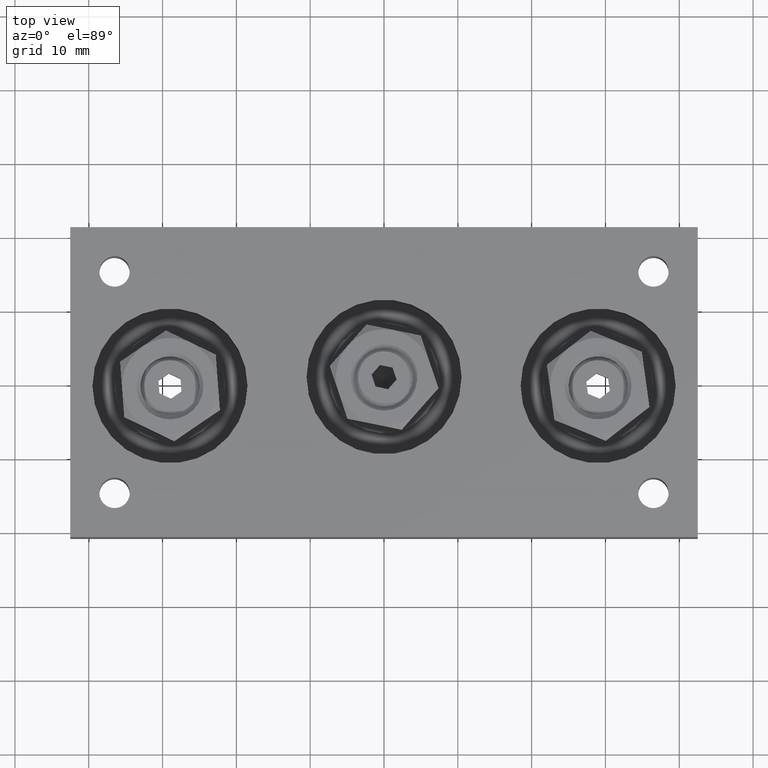
[diagram: clean part render]
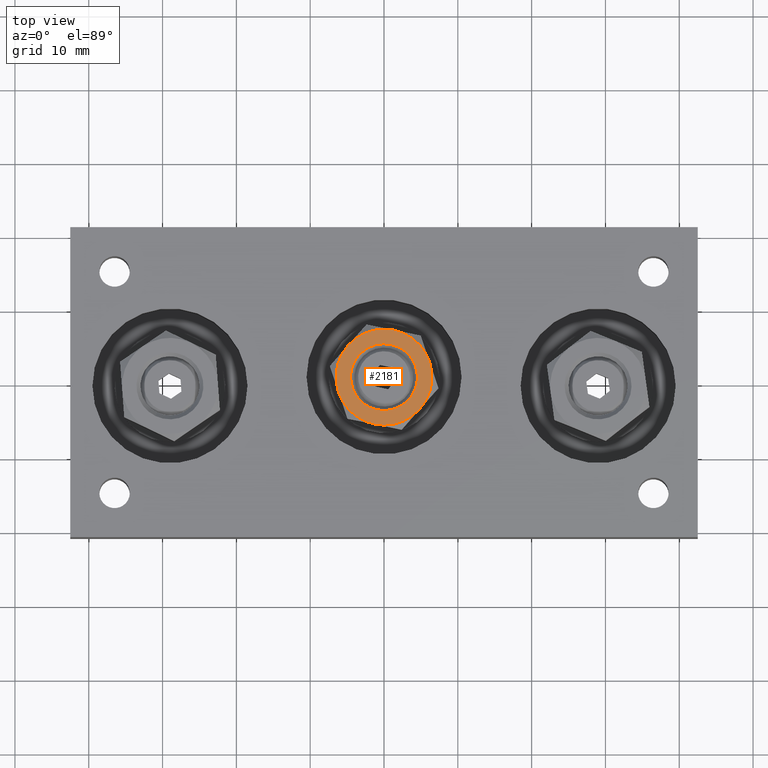
[diagram: same view with one face highlighted and labeled with its STEP entity id]
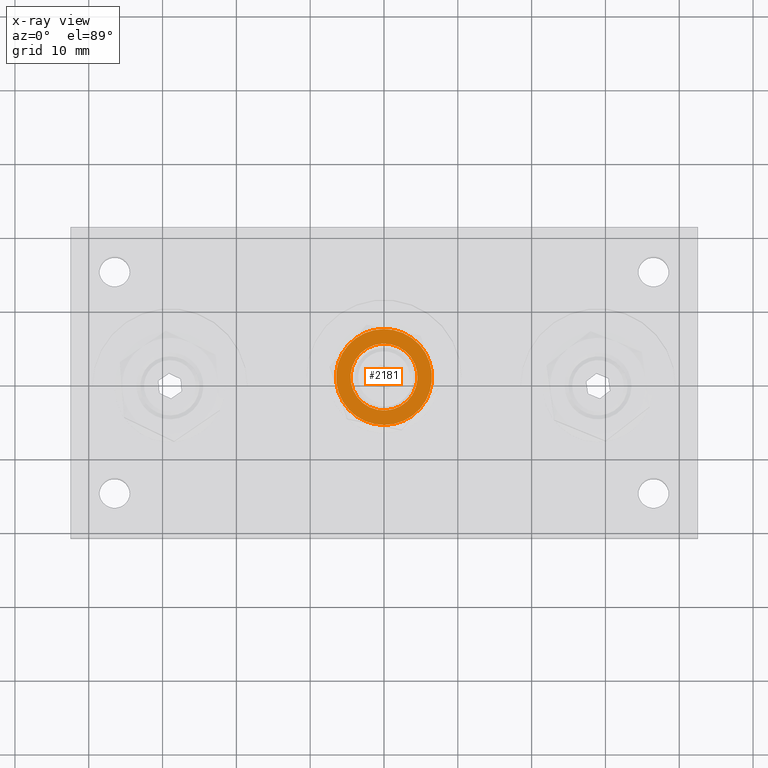
[diagram: x-ray of the same camera — body ghosted, the highlighted face saturated]
A machine part, top view. The second image highlights one B-rep face of the part: STEP entity #2181.
The next image is the same camera in x-ray: the body ghosted, the highlighted face saturated — about 0% of this face is hidden behind the body in this view.
In plain terms, the highlighted planar face has unit normal (0, 0, 1).
Its self-contained STEP definition (entity closure, byte-faithful):
#180=FACE_BOUND('',#572,.T.);
#231=PLANE('',#2650);
#400=FACE_OUTER_BOUND('',#571,.T.);
#571=EDGE_LOOP('',(#1950,#1951,#1952,#1953,#1954,#1955));
#572=EDGE_LOOP('',(#1956));
#977=CIRCLE('',#2646,4.53333333333333);
#980=CIRCLE('',#2651,6.5);
#981=CIRCLE('',#2652,6.5);
#982=CIRCLE('',#2653,6.5);
#983=CIRCLE('',#2654,6.5);
#984=CIRCLE('',#2655,6.5);
#985=CIRCLE('',#2656,6.5);
#1151=VERTEX_POINT('',#3922);
#1154=VERTEX_POINT('',#3932);
#1155=VERTEX_POINT('',#3933);
#1156=VERTEX_POINT('',#3935);
#1157=VERTEX_POINT('',#3937);
#1158=VERTEX_POINT('',#3939);
#1159=VERTEX_POINT('',#3941);
#1417=EDGE_CURVE('',#1151,#1151,#977,.T.);
#1422=EDGE_CURVE('',#1154,#1155,#980,.T.);
#1423=EDGE_CURVE('',#1155,#1156,#981,.T.);
#1424=EDGE_CURVE('',#1156,#1157,#982,.T.);
#1425=EDGE_CURVE('',#1157,#1158,#983,.T.);
#1426=EDGE_CURVE('',#1158,#1159,#984,.T.);
#1427=EDGE_CURVE('',#1159,#1154,#985,.T.);
#1950=ORIENTED_EDGE('',*,*,#1422,.T.);
#1951=ORIENTED_EDGE('',*,*,#1423,.T.);
#1952=ORIENTED_EDGE('',*,*,#1424,.T.);
#1953=ORIENTED_EDGE('',*,*,#1425,.T.);
#1954=ORIENTED_EDGE('',*,*,#1426,.T.);
#1955=ORIENTED_EDGE('',*,*,#1427,.T.);
#1956=ORIENTED_EDGE('',*,*,#1417,.F.);
#2181=ADVANCED_FACE('',(#400,#180),#231,.T.);
#2646=AXIS2_PLACEMENT_3D('',#3923,#3291,#3292);
#2650=AXIS2_PLACEMENT_3D('',#3931,#3301,#3302);
#2651=AXIS2_PLACEMENT_3D('',#3934,#3303,#3304);
#2652=AXIS2_PLACEMENT_3D('',#3936,#3305,#3306);
#2653=AXIS2_PLACEMENT_3D('',#3938,#3307,#3308);
#2654=AXIS2_PLACEMENT_3D('',#3940,#3309,#3310);
#2655=AXIS2_PLACEMENT_3D('',#3942,#3311,#3312);
#2656=AXIS2_PLACEMENT_3D('',#3943,#3313,#3314);
#3291=DIRECTION('center_axis',(0.,0.,1.));
#3292=DIRECTION('ref_axis',(-1.,0.,0.));
#3301=DIRECTION('center_axis',(0.,0.,1.));
#3302=DIRECTION('ref_axis',(1.,0.,0.));
#3303=DIRECTION('center_axis',(0.,0.,1.));
#3304=DIRECTION('ref_axis',(-1.,0.,1.70593711984283E-16));
#3305=DIRECTION('center_axis',(0.,0.,1.));
#3306=DIRECTION('ref_axis',(-1.,0.,1.70593711984283E-16));
#3307=DIRECTION('center_axis',(0.,0.,1.));
#3308=DIRECTION('ref_axis',(-1.,0.,1.70593711984283E-16));
#3309=DIRECTION('center_axis',(0.,0.,1.));
#3310=DIRECTION('ref_axis',(-1.,0.,1.70593711984283E-16));
#3311=DIRECTION('center_axis',(0.,0.,1.));
#3312=DIRECTION('ref_axis',(-1.,0.,1.70593711984283E-16));
#3313=DIRECTION('center_axis',(0.,0.,1.));
#3314=DIRECTION('ref_axis',(-1.,0.,1.70593711984283E-16));
#3922=CARTESIAN_POINT('',(4.53333333333333,5.55173215613467E-16,6.5));
#3923=CARTESIAN_POINT('Origin',(0.,0.,6.5));
#3931=CARTESIAN_POINT('Origin',(-1.38777878078145E-16,-5.55111512312578E-16,
6.5));
#3932=CARTESIAN_POINT('',(3.25,-5.62916512459885,6.5));
#3933=CARTESIAN_POINT('',(6.5,1.92296268638356E-15,6.5));
#3934=CARTESIAN_POINT('Origin',(0.,0.,6.5));
#3935=CARTESIAN_POINT('',(3.24999999999999,5.62916512459885,6.5));
#3936=CARTESIAN_POINT('Origin',(0.,0.,6.5));
#3937=CARTESIAN_POINT('',(-3.25,5.62916512459885,6.5));
#3938=CARTESIAN_POINT('Origin',(0.,0.,6.5));
#3939=CARTESIAN_POINT('',(-6.5,0.,6.5));
#3940=CARTESIAN_POINT('Origin',(0.,0.,6.5));
#3941=CARTESIAN_POINT('',(-3.25,-5.62916512459885,6.5));
#3942=CARTESIAN_POINT('Origin',(0.,0.,6.5));
#3943=CARTESIAN_POINT('Origin',(0.,0.,6.5));